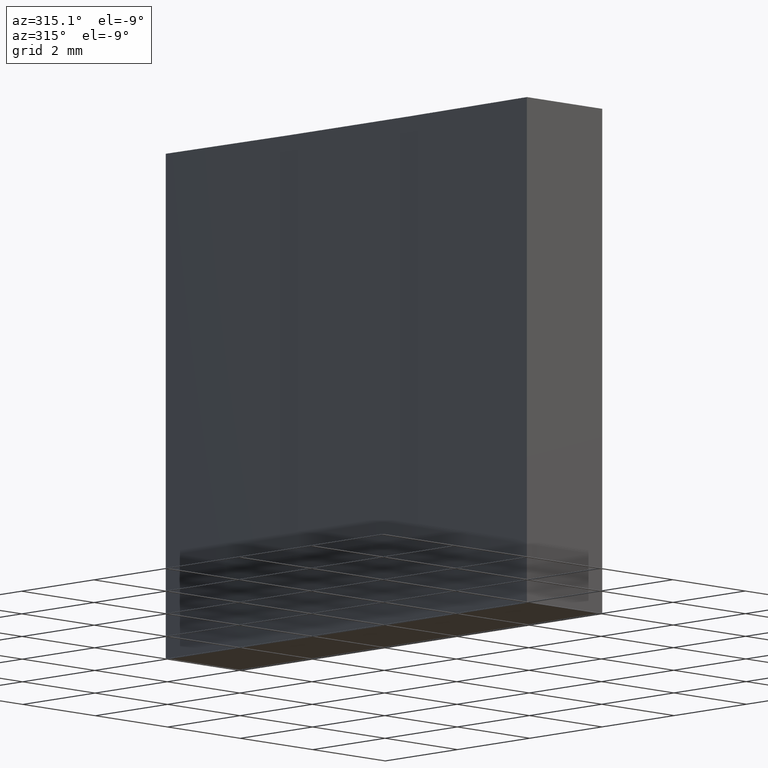
[diagram: clean part render]
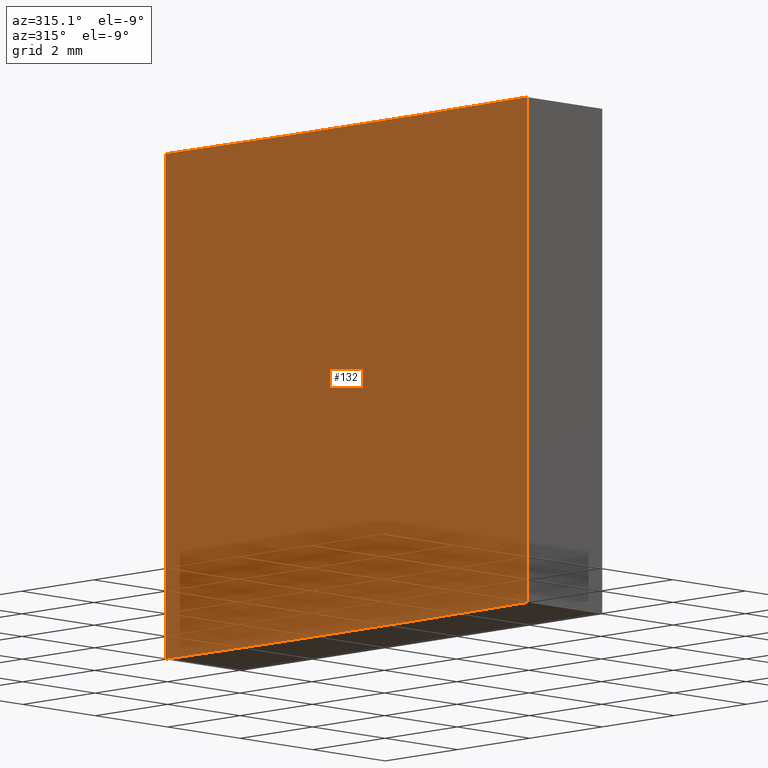
[diagram: same view with one face highlighted and labeled with its STEP entity id]
A machine part, auxiliary view. The second image highlights one B-rep face of the part: STEP entity #132.
In plain terms, the highlighted cylindrical surface (partial cylindrical patch) has radius 155.1 mm, axis along (-0, -0, -1).
Its self-contained STEP definition (entity closure, byte-faithful):
#7 = VERTEX_POINT ( 'NONE', #112 ) ;
#13 = CARTESIAN_POINT ( 'NONE',  ( -84.07381200594568327, -46.01151266271130424, 10.00000000000000000 ) ) ;
#19 = LINE ( 'NONE', #212, #175 ) ;
#28 = VECTOR ( 'NONE', #178, 1000.000000000000000 ) ;
#34 = DIRECTION ( 'NONE',  ( -0.000000000000000000, -0.000000000000000000, -1.000000000000000000 ) ) ;
#44 = AXIS2_PLACEMENT_3D ( 'NONE', #13, #34, #182 ) ;
#46 = CIRCLE ( 'NONE', #185, 155.0999999999999659 ) ;
#47 = FACE_OUTER_BOUND ( 'NONE', #113, .T. ) ;
#48 = DIRECTION ( 'NONE',  ( -0.000000000000000000, -0.000000000000000000, -1.000000000000000000 ) ) ;
#56 = VERTEX_POINT ( 'NONE', #115 ) ;
#57 = EDGE_CURVE ( 'NONE', #61, #208, #119, .T. ) ;
#61 = VERTEX_POINT ( 'NONE', #85 ) ;
#65 = DIRECTION ( 'NONE',  ( -0.000000000000000000, -0.000000000000000000, -1.000000000000000000 ) ) ;
#66 = DIRECTION ( 'NONE',  ( 1.000000000000000000, 0.000000000000000000, 0.000000000000000000 ) ) ;
#70 = CYLINDRICAL_SURFACE ( 'NONE', #44, 155.0999999999999659 ) ;
#76 = ORIENTED_EDGE ( 'NONE', *, *, #120, .T. ) ;
#85 = CARTESIAN_POINT ( 'NONE',  ( 70.94557387853004116, -51.01151266271151030, 10.00000000000000000 ) ) ;
#101 = DIRECTION ( 'NONE',  ( -0.000000000000000000, -0.000000000000000000, -1.000000000000000000 ) ) ;
#112 = CARTESIAN_POINT ( 'NONE',  ( 70.94557387853005537, -41.01151266271152451, 10.00000000000000000 ) ) ;
#113 = EDGE_LOOP ( 'NONE', ( #188, #231, #174, #76 ) ) ;
#115 = CARTESIAN_POINT ( 'NONE',  ( 70.94557387853005537, -41.01151266271152451, 0.000000000000000000 ) ) ;
#119 = LINE ( 'NONE', #234, #28 ) ;
#120 = EDGE_CURVE ( 'NONE', #7, #56, #19, .T. ) ;
#132 = ADVANCED_FACE ( 'NONE', ( #47 ), #70, .F. ) ;
#138 = CARTESIAN_POINT ( 'NONE',  ( 70.94557387853004116, -51.01151266271151030, 0.000000000000000000 ) ) ;
#158 = DIRECTION ( 'NONE',  ( 1.000000000000000000, 0.000000000000000000, 0.000000000000000000 ) ) ;
#167 = EDGE_CURVE ( 'NONE', #56, #208, #46, .T. ) ;
#171 = CIRCLE ( 'NONE', #190, 155.0999999999999659 ) ;
#174 = ORIENTED_EDGE ( 'NONE', *, *, #186, .F. ) ;
#175 = VECTOR ( 'NONE', #65, 1000.000000000000000 ) ;
#178 = DIRECTION ( 'NONE',  ( -0.000000000000000000, -0.000000000000000000, -1.000000000000000000 ) ) ;
#180 = CARTESIAN_POINT ( 'NONE',  ( -84.07381200594568327, -46.01151266271130424, 0.000000000000000000 ) ) ;
#182 = DIRECTION ( 'NONE',  ( -1.000000000000000000, 0.000000000000000000, 0.000000000000000000 ) ) ;
#185 = AXIS2_PLACEMENT_3D ( 'NONE', #180, #48, #158 ) ;
#186 = EDGE_CURVE ( 'NONE', #7, #61, #171, .T. ) ;
#188 = ORIENTED_EDGE ( 'NONE', *, *, #167, .T. ) ;
#190 = AXIS2_PLACEMENT_3D ( 'NONE', #197, #101, #66 ) ;
#197 = CARTESIAN_POINT ( 'NONE',  ( -84.07381200594568327, -46.01151266271130424, 10.00000000000000000 ) ) ;
#208 = VERTEX_POINT ( 'NONE', #138 ) ;
#212 = CARTESIAN_POINT ( 'NONE',  ( 70.94557387853005537, -41.01151266271152451, 10.00000000000000000 ) ) ;
#231 = ORIENTED_EDGE ( 'NONE', *, *, #57, .F. ) ;
#234 = CARTESIAN_POINT ( 'NONE',  ( 70.94557387853004116, -51.01151266271151030, 10.00000000000000000 ) ) ;